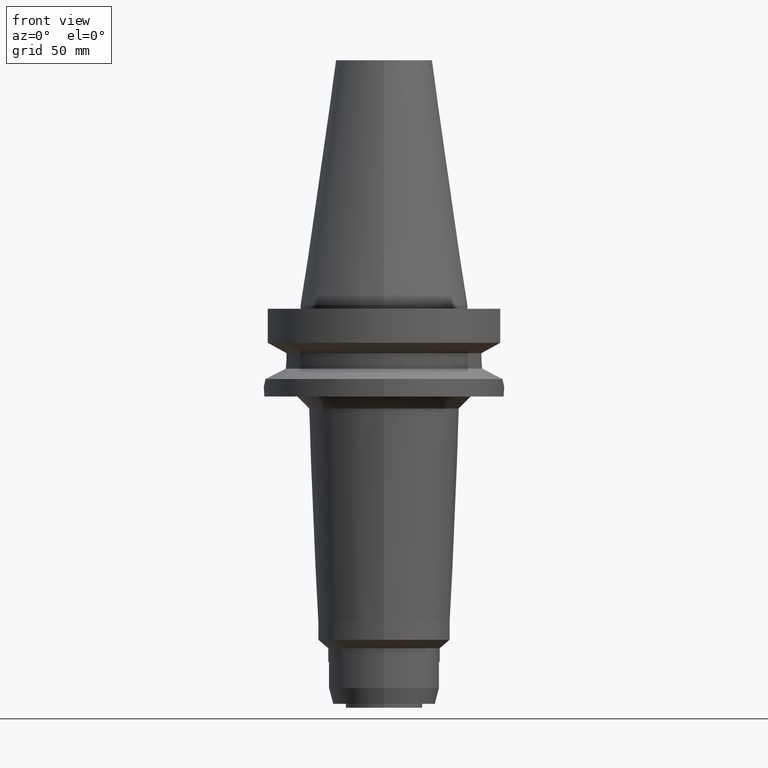
[diagram: clean part render]
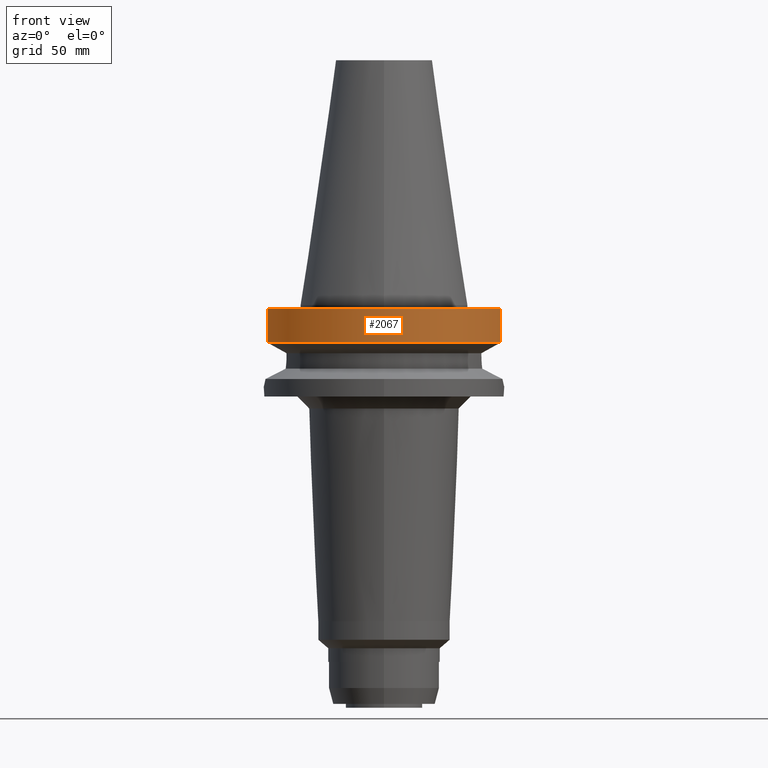
[diagram: same view with one face highlighted and labeled with its STEP entity id]
A machine part, front view. The second image highlights one B-rep face of the part: STEP entity #2067.
In plain terms, the highlighted cylindrical surface (partial cylindrical patch) has radius 50 mm, axis along (0, 0, -1).
Its self-contained STEP definition (entity closure, byte-faithful):
#827=CARTESIAN_POINT('',(0.E0,2.636174699845E-14,-1.5E0));
#828=DIRECTION('',(0.E0,0.E0,-1.E0));
#829=DIRECTION('',(9.664114030784E-1,-2.57E-1,0.E0));
#830=AXIS2_PLACEMENT_3D('',#827,#828,#829);
#835=CARTESIAN_POINT('',(0.E0,2.636174699845E-14,-1.5E0));
#836=DIRECTION('',(0.E0,0.E0,-1.E0));
#837=DIRECTION('',(0.E0,-1.E0,0.E0));
#838=AXIS2_PLACEMENT_3D('',#835,#836,#837);
#940=CARTESIAN_POINT('',(0.E0,1.006319759054E-14,-1.566269223573E1));
#941=DIRECTION('',(0.E0,0.E0,1.E0));
#942=DIRECTION('',(-9.664114030784E-1,-2.57E-1,0.E0));
#943=AXIS2_PLACEMENT_3D('',#940,#941,#942);
#948=CARTESIAN_POINT('',(0.E0,1.006319759054E-14,-1.566269223573E1));
#949=DIRECTION('',(0.E0,0.E0,1.E0));
#950=DIRECTION('',(0.E0,-1.E0,0.E0));
#951=AXIS2_PLACEMENT_3D('',#948,#949,#950);
#972=DIRECTION('',(-7.242826062941E-8,2.723558434546E-7,1.E0));
#973=VECTOR('',#972,1.416265768251E1);
#974=CARTESIAN_POINT('',(-4.832056912814E1,-1.285000385728E1,
-1.566265768251E1));
#975=LINE('',#974,#973);
#979=DIRECTION('',(-7.245256712559E-8,-2.724472421616E-7,-1.E0));
#980=VECTOR('',#979,1.416265767091E1);
#981=CARTESIAN_POINT('',(4.832057015392E1,-1.285E1,-1.5E0));
#982=LINE('',#981,#980);
#1261=CARTESIAN_POINT('',(-4.832057015392E1,-1.285E1,-1.5E0));
#1262=VERTEX_POINT('',#1261);
#1263=CARTESIAN_POINT('',(-4.832056912814E1,-1.285000385728E1,
-1.566265768251E1));
#1264=VERTEX_POINT('',#1263);
#1277=CARTESIAN_POINT('',(4.832057015392E1,-1.285E1,-1.5E0));
#1278=VERTEX_POINT('',#1277);
#1279=CARTESIAN_POINT('',(1.065814103640E-14,-5.E1,-1.5E0));
#1280=VERTEX_POINT('',#1279);
#1294=CARTESIAN_POINT('',(0.E0,-5.E1,-1.566269223573E1));
#1295=CARTESIAN_POINT('',(4.832057015392E1,-1.285E1,-1.566269223573E1));
#1296=VERTEX_POINT('',#1294);
#1297=VERTEX_POINT('',#1295);
#2053=CARTESIAN_POINT('',(0.E0,2.636174699845E-14,1.1526E2));
#2054=DIRECTION('',(0.E0,0.E0,-1.E0));
#2055=DIRECTION('',(0.E0,-1.E0,0.E0));
#2056=AXIS2_PLACEMENT_3D('',#2053,#2054,#2055);
#2057=CYLINDRICAL_SURFACE('',#2056,5.E1);
#2058=ORIENTED_EDGE('',*,*,#2010,.T.);
#2059=ORIENTED_EDGE('',*,*,#1972,.F.);
#2060=ORIENTED_EDGE('',*,*,#1970,.F.);
#2062=ORIENTED_EDGE('',*,*,#2061,.T.);
#2063=ORIENTED_EDGE('',*,*,#2044,.F.);
#2064=ORIENTED_EDGE('',*,*,#2042,.F.);
#2065=EDGE_LOOP('',(#2058,#2059,#2060,#2062,#2063,#2064));
#2066=FACE_OUTER_BOUND('',#2065,.F.);
#831=CIRCLE('',#830,5.E1);
#839=CIRCLE('',#838,5.E1);
#944=CIRCLE('',#943,5.E1);
#952=CIRCLE('',#951,5.E1);
#1970=EDGE_CURVE('',#1278,#1280,#831,.T.);
#1972=EDGE_CURVE('',#1280,#1262,#839,.T.);
#2010=EDGE_CURVE('',#1264,#1262,#975,.T.);
#2042=EDGE_CURVE('',#1264,#1296,#944,.T.);
#2044=EDGE_CURVE('',#1296,#1297,#952,.T.);
#2061=EDGE_CURVE('',#1278,#1297,#982,.T.);
#2067=ADVANCED_FACE('',(#2066),#2057,.T.);